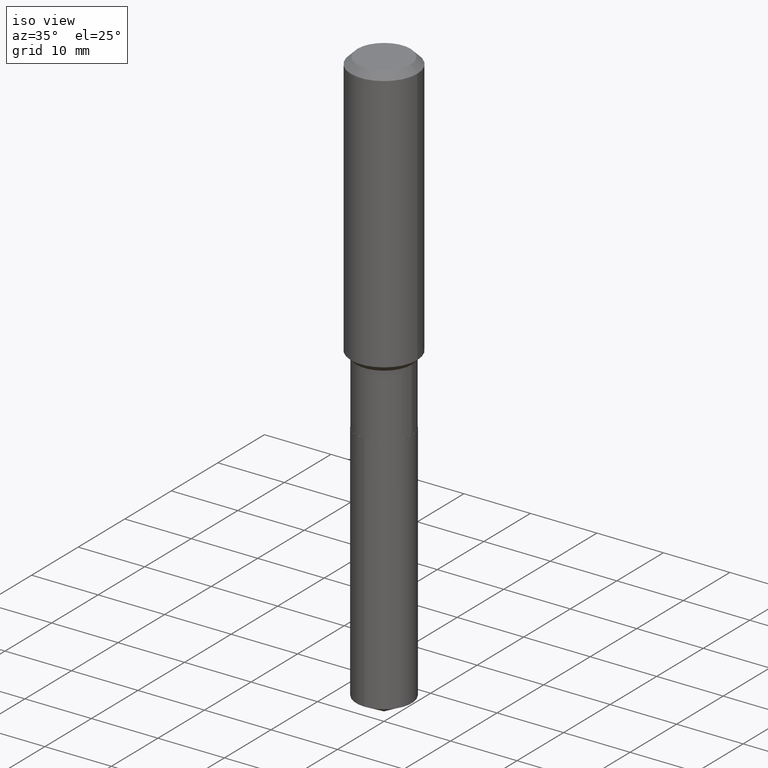
[diagram: clean part render]
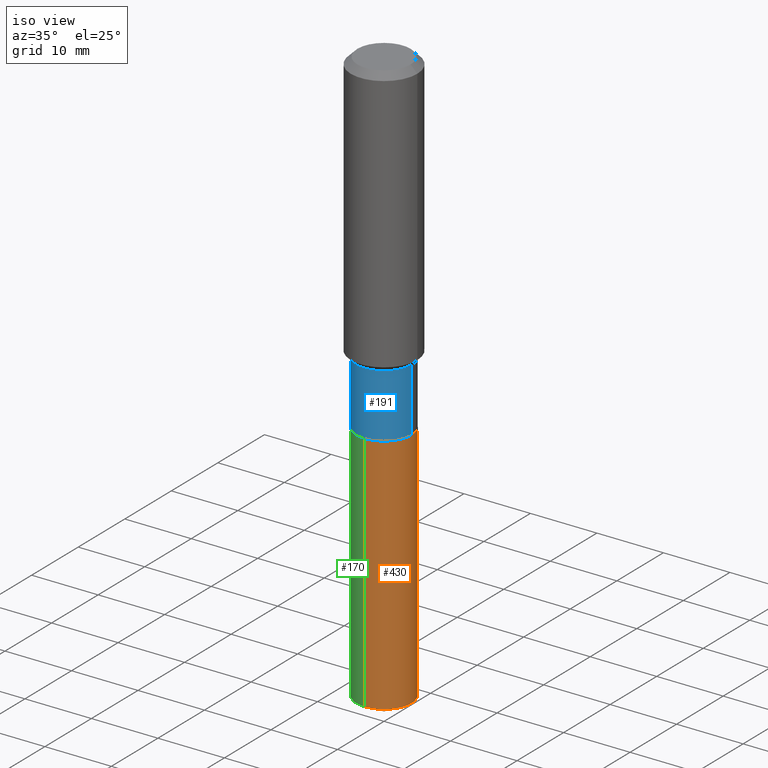
[diagram: same view with three faces highlighted in distinct colors, each labeled with its STEP entity id]
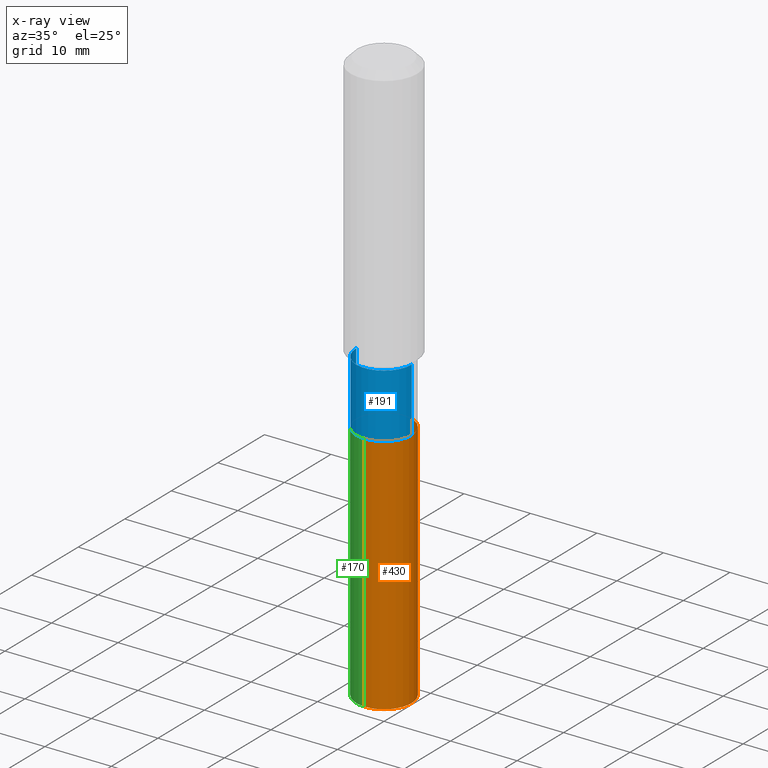
[diagram: x-ray of the same camera — body ghosted, the three highlighted faces saturated]
A machine part, iso view with three faces highlighted in distinct colors.
The next image is the same camera in x-ray (body ghosted, the three faces saturated) — at least one of them is partly hidden behind the body in this view.
Their STEP definitions:

[orange] entity #430 — the highlighted cylindrical surface (edge-blend (fillet) strip) has radius 4.1669 mm, axis along (-0, 0, 1).
#7 = ORIENTED_EDGE ( 'NONE', *, *, #30, .T. ) ;
#12 = CARTESIAN_POINT ( 'NONE',  ( 4.845940986336466171E-29, -6.918719421051576678E-15, -1.981599999999999806 ) ) ;
#19 = ORIENTED_EDGE ( 'NONE', *, *, #312, .F. ) ;
#30 = EDGE_CURVE ( 'NONE', #474, #352, #126, .T. ) ;
#31 = EDGE_CURVE ( 'NONE', #474, #121, #424, .T. ) ;
#33 = VECTOR ( 'NONE', #265, 39.37007874015748143 ) ;
#52 = FACE_OUTER_BOUND ( 'NONE', #77, .T. ) ;
#77 = EDGE_LOOP ( 'NONE', ( #7, #427, #19, #96 ) ) ;
#91 = DIRECTION ( 'NONE',  ( -2.445522446065452853E-29, 3.491404523481540446E-15, 1.000000000000000000 ) ) ;
#96 = ORIENTED_EDGE ( 'NONE', *, *, #31, .F. ) ;
#121 = VERTEX_POINT ( 'NONE', #396 ) ;
#126 = CIRCLE ( 'NONE', #450, 0.1640500000000000014 ) ;
#132 = CARTESIAN_POINT ( 'NONE',  ( -1.145555027274348438E-15, -0.1640500000000119085, -3.416673067735933600 ) ) ;
#136 = DIRECTION ( 'NONE',  ( -6.982962677686265133E-15, -1.000000000000000000, 3.330506545156066257E-15 ) ) ;
#160 = DIRECTION ( 'NONE',  ( -2.445522446065452572E-29, 3.491404523481540446E-15, 1.000000000000000000 ) ) ;
#182 = AXIS2_PLACEMENT_3D ( 'NONE', #12, #160, #206 ) ;
#206 = DIRECTION ( 'NONE',  ( -6.982962677686265133E-15, -1.000000000000000000, 3.330506545156066257E-15 ) ) ;
#226 = CIRCLE ( 'NONE', #443, 0.1640500000000000014 ) ;
#229 = CARTESIAN_POINT ( 'NONE',  ( 1.165645358014527787E-15, 0.1640499999999880942, -3.416673067735934932 ) ) ;
#233 = VECTOR ( 'NONE', #91, 39.37007874015748143 ) ;
#254 = EDGE_CURVE ( 'NONE', #352, #420, #267, .T. ) ;
#265 = DIRECTION ( 'NONE',  ( -2.445522446065452853E-29, 3.491404523481540446E-15, 1.000000000000000000 ) ) ;
#267 = LINE ( 'NONE', #300, #33 ) ;
#298 = CARTESIAN_POINT ( 'NONE',  ( 4.845940986336466171E-29, -6.918719421051576678E-15, -1.981599999999999806 ) ) ;
#300 = CARTESIAN_POINT ( 'NONE',  ( 1.165645358014492485E-15, 0.1640499999999930625, -1.981600000000000250 ) ) ;
#312 = EDGE_CURVE ( 'NONE', #121, #420, #226, .T. ) ;
#351 = DIRECTION ( 'NONE',  ( -2.445522446065452572E-29, 3.491404523481540446E-15, 1.000000000000000000 ) ) ;
#352 = VERTEX_POINT ( 'NONE', #229 ) ;
#376 = DIRECTION ( 'NONE',  ( -6.982962677686265133E-15, -1.000000000000000000, 3.330506545156066257E-15 ) ) ;
#388 = CYLINDRICAL_SURFACE ( 'NONE', #182, 0.1640500000000000014 ) ;
#389 = CARTESIAN_POINT ( 'NONE',  ( -1.145555027274383345E-15, -0.1640500000000069125, -1.981599999999999140 ) ) ;
#395 = DIRECTION ( 'NONE',  ( -2.445522446065452572E-29, 3.491404523481540446E-15, 1.000000000000000000 ) ) ;
#396 = CARTESIAN_POINT ( 'NONE',  ( -1.145555027274383345E-15, -0.1640500000000069125, -1.981599999999999140 ) ) ;
#420 = VERTEX_POINT ( 'NONE', #472 ) ;
#424 = LINE ( 'NONE', #389, #233 ) ;
#427 = ORIENTED_EDGE ( 'NONE', *, *, #254, .T. ) ;
#430 = ADVANCED_FACE ( 'NONE', ( #52 ), #388, .T. ) ;
#443 = AXIS2_PLACEMENT_3D ( 'NONE', #298, #351, #376 ) ;
#450 = AXIS2_PLACEMENT_3D ( 'NONE', #480, #395, #136 ) ;
#472 = CARTESIAN_POINT ( 'NONE',  ( 1.165645358014527787E-15, 0.1640499999999930625, -1.981600000000000250 ) ) ;
#474 = VERTEX_POINT ( 'NONE', #132 ) ;
#480 = CARTESIAN_POINT ( 'NONE',  ( 8.355444385228701758E-29, -1.192914002127134836E-14, -3.416673067735934044 ) ) ;

[blue] entity #191 — the highlighted cylindrical surface (edge-blend (fillet) strip) has radius 4.1669 mm, axis along (-0, 0, 1).
#46 = VECTOR ( 'NONE', #193, 39.37007874015748143 ) ;
#54 = ORIENTED_EDGE ( 'NONE', *, *, #70, .F. ) ;
#70 = EDGE_CURVE ( 'NONE', #469, #466, #399, .T. ) ;
#79 = VERTEX_POINT ( 'NONE', #287 ) ;
#99 = DIRECTION ( 'NONE',  ( -2.445468806185136597E-29, 3.491481338843145583E-15, 1.000000000000000000 ) ) ;
#101 = AXIS2_PLACEMENT_3D ( 'NONE', #140, #446, #176 ) ;
#125 = EDGE_LOOP ( 'NONE', ( #354, #165, #241, #54 ) ) ;
#130 = CARTESIAN_POINT ( 'NONE',  ( 0.1640499999999999459, -6.746938539180489683E-15, -1.604299999999999837 ) ) ;
#138 = DIRECTION ( 'NONE',  ( 1.000000000000000000, -6.982962677686266711E-15, 4.876176775795935232E-29 ) ) ;
#140 = CARTESIAN_POINT ( 'NONE',  ( 3.923265605762814630E-29, -5.601383511906058021E-15, -1.604299999999999837 ) ) ;
#145 = CYLINDRICAL_SURFACE ( 'NONE', #302, 0.1640500000000000014 ) ;
#153 = VERTEX_POINT ( 'NONE', #444 ) ;
#165 = ORIENTED_EDGE ( 'NONE', *, *, #397, .T. ) ;
#176 = DIRECTION ( 'NONE',  ( 1.000000000000000000, -6.982962677686266711E-15, 0.000000000000000000 ) ) ;
#185 = FACE_OUTER_BOUND ( 'NONE', #125, .T. ) ;
#191 = ADVANCED_FACE ( 'NONE', ( #185 ), #145, .T. ) ;
#193 = DIRECTION ( 'NONE',  ( -2.445468806185136877E-29, 3.491481338843145188E-15, 1.000000000000000000 ) ) ;
#197 = VECTOR ( 'NONE', #426, 39.37007874015748143 ) ;
#202 = EDGE_CURVE ( 'NONE', #79, #466, #365, .T. ) ;
#208 = LINE ( 'NONE', #462, #197 ) ;
#241 = ORIENTED_EDGE ( 'NONE', *, *, #202, .T. ) ;
#244 = CARTESIAN_POINT ( 'NONE',  ( 4.844718251933373369E-29, -6.916973680382155175E-15, -1.981099999999999861 ) ) ;
#282 = AXIS2_PLACEMENT_3D ( 'NONE', #244, #428, #318 ) ;
#287 = CARTESIAN_POINT ( 'NONE',  ( 0.1640500000000000291, -8.062528707656587626E-15, -1.981099999999999861 ) ) ;
#294 = CARTESIAN_POINT ( 'NONE',  ( 0.1640500000000000014, -1.145555027274432057E-15, 7.999368000693231542E-30 ) ) ;
#302 = AXIS2_PLACEMENT_3D ( 'NONE', #407, #99, #138 ) ;
#318 = DIRECTION ( 'NONE',  ( 1.000000000000000000, -6.982962677686269077E-15, 0.000000000000000000 ) ) ;
#354 = ORIENTED_EDGE ( 'NONE', *, *, #470, .F. ) ;
#359 = CARTESIAN_POINT ( 'NONE',  ( -0.1640499999999999459, -5.093533238129662036E-15, -1.604299999999999837 ) ) ;
#365 = LINE ( 'NONE', #294, #46 ) ;
#397 = EDGE_CURVE ( 'NONE', #153, #79, #452, .T. ) ;
#399 = CIRCLE ( 'NONE', #101, 0.1640499999999999459 ) ;
#407 = CARTESIAN_POINT ( 'NONE',  ( 0.000000000000000000, 0.000000000000000000, 0.000000000000000000 ) ) ;
#426 = DIRECTION ( 'NONE',  ( -2.445468806185136877E-29, 3.491481338843145188E-15, 1.000000000000000000 ) ) ;
#428 = DIRECTION ( 'NONE',  ( -2.445468806185136597E-29, 3.491481338843145583E-15, 1.000000000000000000 ) ) ;
#444 = CARTESIAN_POINT ( 'NONE',  ( -0.1640500000000000291, -5.093533238129662036E-15, -1.981099999999999861 ) ) ;
#446 = DIRECTION ( 'NONE',  ( -2.445468806185136597E-29, 3.491481338843145583E-15, 1.000000000000000000 ) ) ;
#452 = CIRCLE ( 'NONE', #282, 0.1640500000000000291 ) ;
#462 = CARTESIAN_POINT ( 'NONE',  ( -0.1640500000000000014, 1.165645358014444365E-15, -8.069513015563172164E-30 ) ) ;
#466 = VERTEX_POINT ( 'NONE', #130 ) ;
#469 = VERTEX_POINT ( 'NONE', #359 ) ;
#470 = EDGE_CURVE ( 'NONE', #153, #469, #208, .T. ) ;

[green] entity #170 — the highlighted cylindrical surface (edge-blend (fillet) strip) has radius 4.1669 mm, axis along (-0, 0, 1).
#31 = EDGE_CURVE ( 'NONE', #474, #121, #424, .T. ) ;
#33 = VECTOR ( 'NONE', #265, 39.37007874015748143 ) ;
#36 = DIRECTION ( 'NONE',  ( -2.445522446065452572E-29, 3.491404523481540446E-15, 1.000000000000000000 ) ) ;
#40 = DIRECTION ( 'NONE',  ( -2.445522446065452572E-29, 3.491404523481540446E-15, 1.000000000000000000 ) ) ;
#48 = CIRCLE ( 'NONE', #120, 0.1640500000000000014 ) ;
#84 = CARTESIAN_POINT ( 'NONE',  ( 4.845940986336466171E-29, -6.918719421051576678E-15, -1.981599999999999806 ) ) ;
#86 = DIRECTION ( 'NONE',  ( -6.982962677686265133E-15, -1.000000000000000000, 3.330506545156066257E-15 ) ) ;
#91 = DIRECTION ( 'NONE',  ( -2.445522446065452853E-29, 3.491404523481540446E-15, 1.000000000000000000 ) ) ;
#94 = ORIENTED_EDGE ( 'NONE', *, *, #346, .F. ) ;
#107 = CARTESIAN_POINT ( 'NONE',  ( 4.845940986336466171E-29, -6.918719421051576678E-15, -1.981599999999999806 ) ) ;
#118 = AXIS2_PLACEMENT_3D ( 'NONE', #107, #404, #211 ) ;
#120 = AXIS2_PLACEMENT_3D ( 'NONE', #190, #40, #344 ) ;
#121 = VERTEX_POINT ( 'NONE', #396 ) ;
#132 = CARTESIAN_POINT ( 'NONE',  ( -1.145555027274348438E-15, -0.1640500000000119085, -3.416673067735933600 ) ) ;
#149 = ORIENTED_EDGE ( 'NONE', *, *, #254, .F. ) ;
#170 = ADVANCED_FACE ( 'NONE', ( #257 ), #291, .T. ) ;
#190 = CARTESIAN_POINT ( 'NONE',  ( 8.355444385228701758E-29, -1.192914002127134836E-14, -3.416673067735934044 ) ) ;
#203 = ORIENTED_EDGE ( 'NONE', *, *, #31, .T. ) ;
#211 = DIRECTION ( 'NONE',  ( -6.982962677686265133E-15, -1.000000000000000000, 3.330506545156066257E-15 ) ) ;
#229 = CARTESIAN_POINT ( 'NONE',  ( 1.165645358014527787E-15, 0.1640499999999880942, -3.416673067735934932 ) ) ;
#233 = VECTOR ( 'NONE', #91, 39.37007874015748143 ) ;
#254 = EDGE_CURVE ( 'NONE', #352, #420, #267, .T. ) ;
#257 = FACE_OUTER_BOUND ( 'NONE', #358, .T. ) ;
#265 = DIRECTION ( 'NONE',  ( -2.445522446065452853E-29, 3.491404523481540446E-15, 1.000000000000000000 ) ) ;
#267 = LINE ( 'NONE', #300, #33 ) ;
#290 = EDGE_CURVE ( 'NONE', #352, #474, #48, .T. ) ;
#291 = CYLINDRICAL_SURFACE ( 'NONE', #118, 0.1640500000000000014 ) ;
#300 = CARTESIAN_POINT ( 'NONE',  ( 1.165645358014492485E-15, 0.1640499999999930625, -1.981600000000000250 ) ) ;
#340 = AXIS2_PLACEMENT_3D ( 'NONE', #84, #36, #86 ) ;
#344 = DIRECTION ( 'NONE',  ( -6.982962677686265133E-15, -1.000000000000000000, 3.330506545156066257E-15 ) ) ;
#346 = EDGE_CURVE ( 'NONE', #420, #121, #436, .T. ) ;
#352 = VERTEX_POINT ( 'NONE', #229 ) ;
#358 = EDGE_LOOP ( 'NONE', ( #149, #422, #203, #94 ) ) ;
#389 = CARTESIAN_POINT ( 'NONE',  ( -1.145555027274383345E-15, -0.1640500000000069125, -1.981599999999999140 ) ) ;
#396 = CARTESIAN_POINT ( 'NONE',  ( -1.145555027274383345E-15, -0.1640500000000069125, -1.981599999999999140 ) ) ;
#404 = DIRECTION ( 'NONE',  ( -2.445522446065452572E-29, 3.491404523481540446E-15, 1.000000000000000000 ) ) ;
#420 = VERTEX_POINT ( 'NONE', #472 ) ;
#422 = ORIENTED_EDGE ( 'NONE', *, *, #290, .T. ) ;
#424 = LINE ( 'NONE', #389, #233 ) ;
#436 = CIRCLE ( 'NONE', #340, 0.1640500000000000014 ) ;
#472 = CARTESIAN_POINT ( 'NONE',  ( 1.165645358014527787E-15, 0.1640499999999930625, -1.981600000000000250 ) ) ;
#474 = VERTEX_POINT ( 'NONE', #132 ) ;